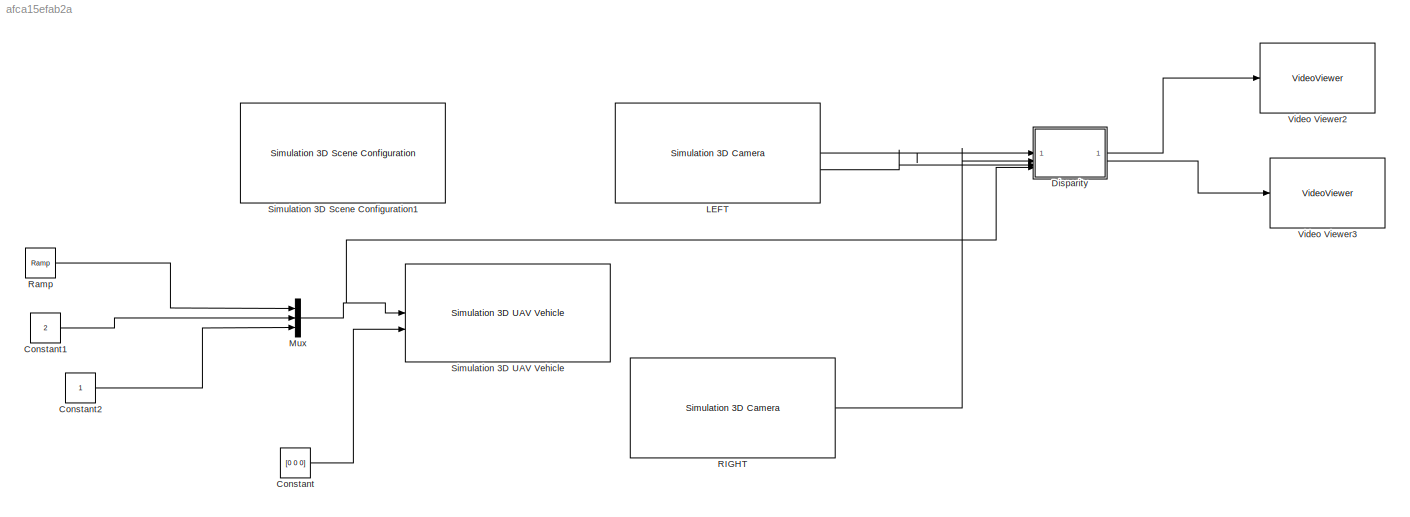
MODEL slx_afca15efab2a
KIND model
CONFIG AbsTol = auto
CONFIG EnableMultiTasking = off
CONFIG FixedStep = auto
CONFIG MaxStep = auto
CONFIG MinStep = auto
CONFIG RelTol = 1e-3
CONFIG SampleTimeConstraint = Unconstrained
CONFIG SolverName = VariableStepAuto
CONFIG StartTime = 0.0
CONFIG StopTime = 5
BLOCK [Constant] Constant
  Value = [0 0 0]
BLOCK [Constant] Constant1
  Value = 2
BLOCK [Constant] Constant2
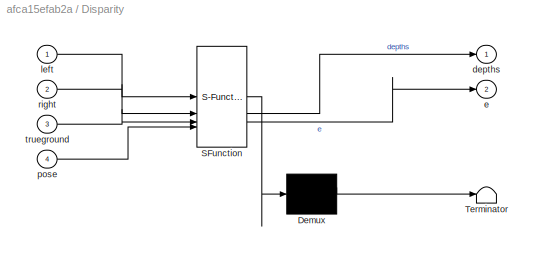
BLOCK [SubSystem] Disparity
  ErrorFcn = Stateflow.Translate.translate
  PermitHierarchicalResolution = ExplicitOnly
  SFBlockType = MATLAB Function
  TreatAsAtomicUnit = on
BLOCK [Demux] Disparity/ Demux 
  Outputs = 1
BLOCK [S-Function] Disparity/ SFunction 
  EnableBusSupport = on
  FunctionName = sf_sfun
  PortCounts = [4 3]
  SFcnIsStateOwnerBlock = off
  SFunctionDeploymentMode = off
  Tag = Stateflow S-Function 1
BLOCK [Terminator] Disparity/ Terminator 
BLOCK [Outport] Disparity/depths
BLOCK [Outport] Disparity/e
  Port = 2
BLOCK [Inport] Disparity/left
BLOCK [Inport] Disparity/pose
  Port = 4
BLOCK [Inport] Disparity/right
  Port = 2
BLOCK [Inport] Disparity/trueground
  Port = 3
BLOCK [Reference] LEFT  REF=sim3dcameralib/Simulation 3D Camera
  Priority = 1
  SourceBlock = sim3dcameralib/Simulation 3D Camera
  SourceType = Simulation 3D Camera
BLOCK [Mux] Mux
  DisplayOption = bar
  Inputs = 3
BLOCK [Reference] RIGHT  REF=sim3dcameralib/Simulation 3D Camera
  Priority = 1
  SourceBlock = sim3dcameralib/Simulation 3D Camera
  SourceType = Simulation 3D Camera
BLOCK [Reference] Ramp  REF=simulink/Sources/Ramp
  SourceBlock = simulink/Sources/Ramp
  SourceType = Ramp
BLOCK [Reference] Simulation 3D Scene Configuration1  REF=sim3dlib/Simulation 3D Scene Configuration
  Priority = 0
  SourceBlock = sim3dlib/Simulation 3D Scene Configuration
  SourceType = Simulation 3D Scene Configuration
BLOCK [Reference] Simulation 3D UAV Vehicle  REF=uavsim3dlib/Simulation 3D UAV Vehicle
  Priority = -1
  SourceBlock = uavsim3dlib/Simulation 3D UAV Vehicle
  SourceType = Simulation 3D UAV Vehicle
BLOCK [VideoViewer] Video Viewer2
  FigPos = [-60.6 693.2 673.6 588]
  ScopeSpecificationString = vipscopes.VideoViewerScopeCfg('CurrentConfiguration', extmgr.ConfigurationSet(extmgr.Configuration('Core','General UI',true),extmgr.Configuration('Core','Source UI',true),extmgr.Configuration('Sources','WiredSimulink',true),extmgr.Configuration('Visuals','Video',true),extmgr.Configuration('Tools','Image Navigation Tools',true,'FitToView',true,'Magnification',0.666666666666667),extmgr.Configuration...<+158ch>
  colormapValue = gray(256)
BLOCK [VideoViewer] Video Viewer3
  FigPos = [316.2 947.6 766.4 756]
  ScopeSpecificationString = vipscopes.VideoViewerScopeCfg('CurrentConfiguration', extmgr.ConfigurationSet(extmgr.Configuration('Core','General UI',true),extmgr.Configuration('Core','Source UI',true),extmgr.Configuration('Sources','WiredSimulink',true),extmgr.Configuration('Visuals','Video',true),extmgr.Configuration('Tools','Image Navigation Tools',true),extmgr.Configuration('Tools','Image Tool',true),extmgr.Configuration('T...<+107ch>
LINE Constant1:1 -> Mux:2
LINE Constant2:1 -> Mux:3
LINE Constant:1 -> Simulation 3D UAV Vehicle:2
LINE Disparity:1 -> Video Viewer2:1
LINE Disparity:2 -> Video Viewer3:1
LINE LEFT:1 -> Disparity:1
LINE LEFT:2 -> Disparity:3
NET Mux:1 -> Disparity:4, Simulation 3D UAV Vehicle:1
LINE RIGHT:1 -> Disparity:2
LINE Ramp:1 -> Mux:1
note: NET lines group one-source signal fan-out (src -> all destinations, sorted); 1:1 wires keep LINE
CHART Disparity states=1 transitions=1
  STATE_LABEL 'eML_blk_kernel()'
  STATE_LABEL "SCRIPT:\nfunction [depths,e] = Disparity(left,right,trueground,pose)\n\ndepthstereo = uint8(ones(720,1280,3));\n\nerror = uint8(ones(720,1280,3));\ncoder.extrinsic('DisparityMatlab2');\n\n \n[depthstereo error]=DisparityMatlab2(left,right,trueground,pose);\n\n\n\n\ndepths = depthstereo;\ne=error;\n"
CHART  states=0 transitions=0
